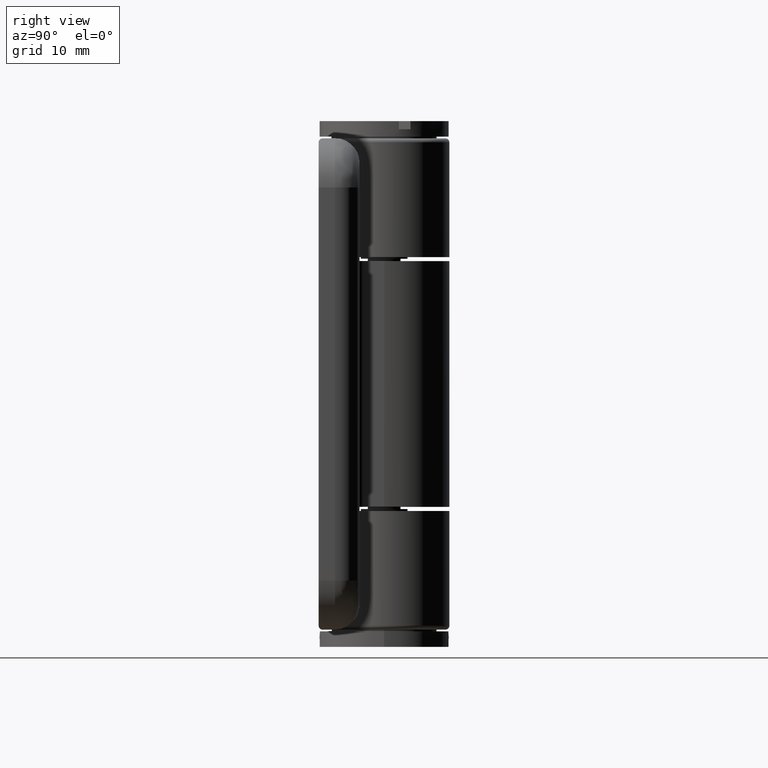
[diagram: clean part render]
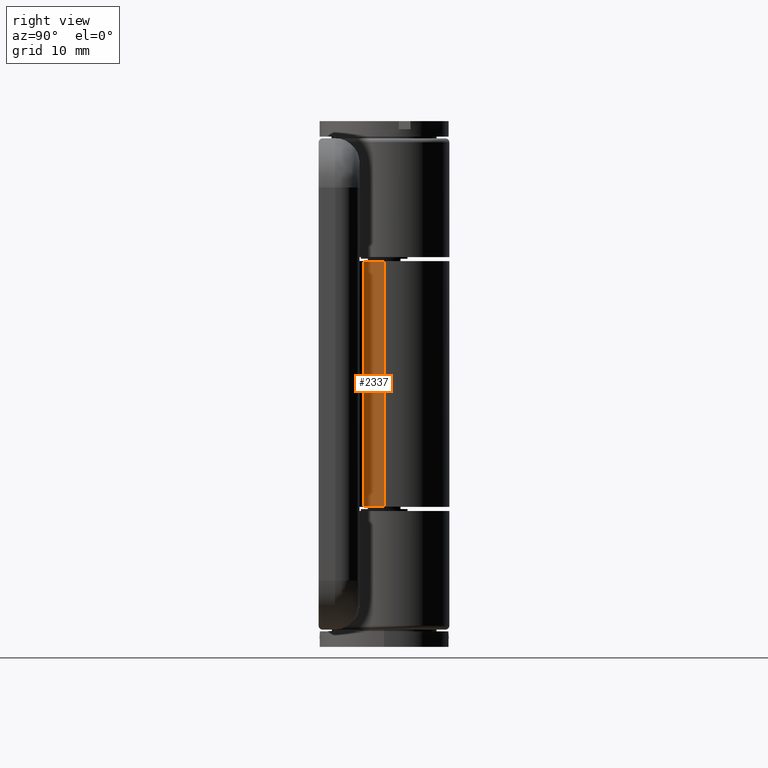
[diagram: same view with one face highlighted and labeled with its STEP entity id]
A machine part, right view. The second image highlights one B-rep face of the part: STEP entity #2337.
In plain terms, the highlighted planar face has unit normal (1, 0, 0).
Its self-contained STEP definition (entity closure, byte-faithful):
#304=FACE_OUTER_BOUND('',#484,.T.);
#484=EDGE_LOOP('',(#1843,#1844,#1845,#1846));
#608=LINE('',#3458,#758);
#612=LINE('',#3501,#762);
#666=LINE('',#3741,#816);
#672=LINE('',#3791,#822);
#758=VECTOR('',#2731,2.5);
#762=VECTOR('',#2781,2.5);
#816=VECTOR('',#2987,30.);
#822=VECTOR('',#3023,30.);
#1039=VERTEX_POINT('',#3454);
#1041=VERTEX_POINT('',#3457);
#1056=VERTEX_POINT('',#3496);
#1057=VERTEX_POINT('',#3499);
#1261=EDGE_CURVE('',#1041,#1039,#608,.T.);
#1279=EDGE_CURVE('',#1056,#1057,#612,.T.);
#1378=EDGE_CURVE('',#1041,#1057,#666,.T.);
#1392=EDGE_CURVE('',#1039,#1056,#672,.T.);
#1843=ORIENTED_EDGE('',*,*,#1378,.F.);
#1844=ORIENTED_EDGE('',*,*,#1261,.T.);
#1845=ORIENTED_EDGE('',*,*,#1392,.T.);
#1846=ORIENTED_EDGE('',*,*,#1279,.T.);
#2230=PLANE('',#2548);
#2337=ADVANCED_FACE('',(#304),#2230,.T.);
#2548=AXIS2_PLACEMENT_3D('',#3792,#3024,#3025);
#2731=DIRECTION('',(-3.70074341541718E-16,1.,0.));
#2781=DIRECTION('',(3.70074341541718E-16,-1.,0.));
#2987=DIRECTION('',(0.,0.,-1.));
#3023=DIRECTION('',(0.,0.,-1.));
#3024=DIRECTION('center_axis',(-1.,-3.70074341541718E-16,0.));
#3025=DIRECTION('ref_axis',(0.,0.,1.));
#3454=CARTESIAN_POINT('',(-8.,-9.79717439317883E-16,15.));
#3457=CARTESIAN_POINT('',(-8.,-2.5,15.));
#3458=CARTESIAN_POINT('',(-8.,-5.5,15.));
#3496=CARTESIAN_POINT('',(-8.,-9.79717439317883E-16,-15.));
#3499=CARTESIAN_POINT('',(-8.,-2.5,-15.));
#3501=CARTESIAN_POINT('',(-8.,-5.50000000000001,-15.));
#3741=CARTESIAN_POINT('',(-8.,-2.5,0.));
#3791=CARTESIAN_POINT('',(-8.,-9.79717439317883E-16,0.));
#3792=CARTESIAN_POINT('Origin',(-8.,-3.,0.));